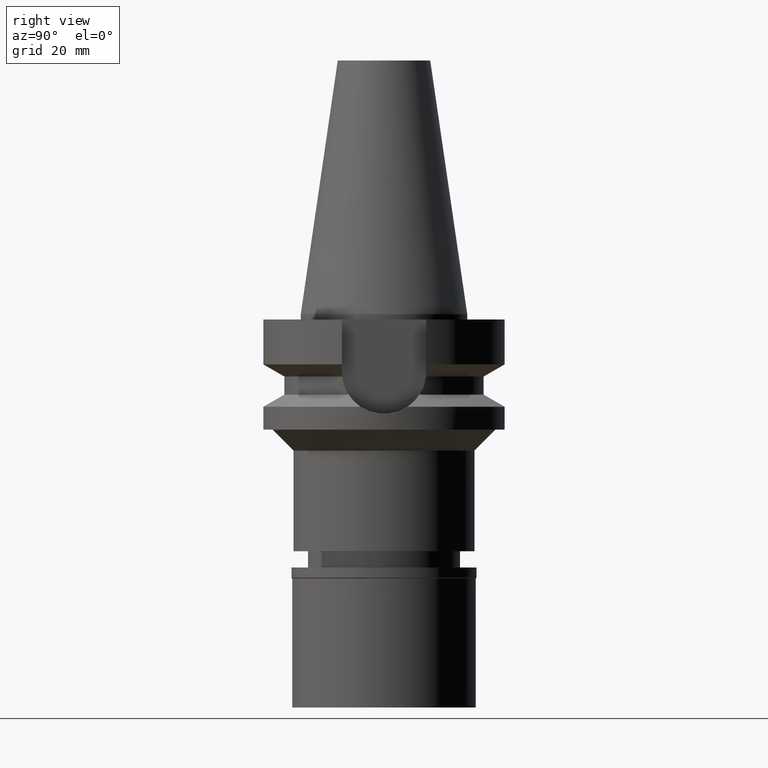
[diagram: clean part render]
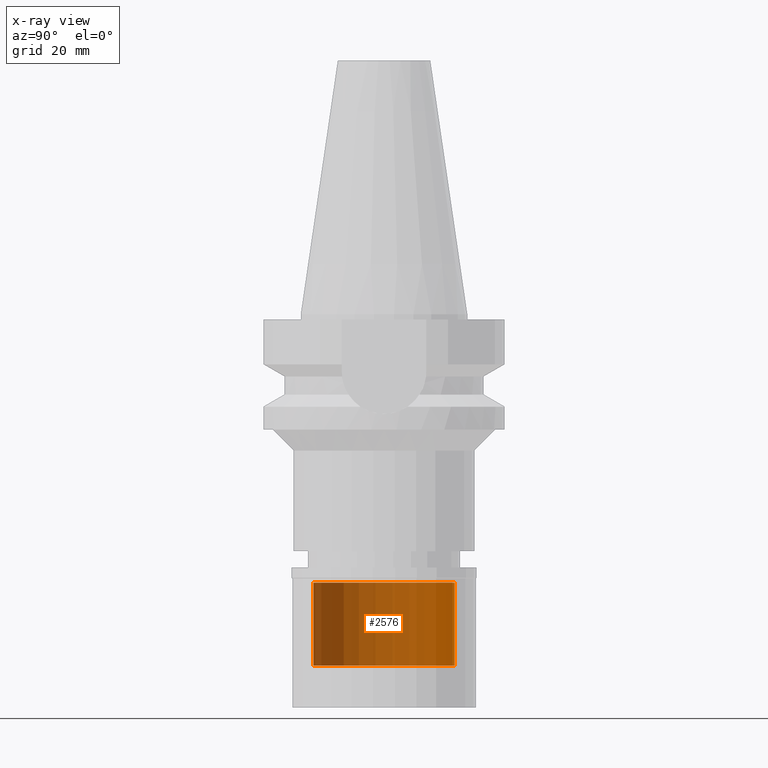
[diagram: x-ray — body ghosted, one internal face saturated and labeled with its STEP entity id]
A machine part, right view, then the same camera in x-ray: the body is ghosted and one INTERNAL B-rep face — a face not visible from any outside direction — is saturated and labeled: STEP entity #2576.
In plain terms, the highlighted cylindrical surface (partial cylindrical patch) has radius 13.5 mm, axis along (0, 0, -1).
Its self-contained STEP definition (entity closure, byte-faithful):
#160 = EDGE_CURVE ( 'NONE', #2814, #550, #971, .T. ) ;
#499 = CARTESIAN_POINT ( 'NONE',  ( 0.0000000000000000000, 13.50000000000000000, -18.70000000000000284 ) ) ;
#510 = DIRECTION ( 'NONE',  ( 0.0000000000000000000, 0.0000000000000000000, 1.000000000000000000 ) ) ;
#533 = DIRECTION ( 'NONE',  ( 0.0000000000000000000, 0.0000000000000000000, -1.000000000000000000 ) ) ;
#550 = VERTEX_POINT ( 'NONE', #1916 ) ;
#560 = VECTOR ( 'NONE', #1065, 1000.000000000000000 ) ;
#567 = CARTESIAN_POINT ( 'NONE',  ( 0.0000000000000000000, 13.50000000000000000, -18.70000000000000284 ) ) ;
#612 = CARTESIAN_POINT ( 'NONE',  ( 0.0000000000000000000, 13.50000000000000000, -2.899999999999999911 ) ) ;
#672 = CARTESIAN_POINT ( 'NONE',  ( 0.0000000000000000000, -13.50000000000000000, -18.70000000000000284 ) ) ;
#717 = AXIS2_PLACEMENT_3D ( 'NONE', #1158, #533, #1028 ) ;
#815 = AXIS2_PLACEMENT_3D ( 'NONE', #1818, #2754, #1354 ) ;
#909 = EDGE_CURVE ( 'NONE', #2547, #2738, #2204, .T. ) ;
#971 = LINE ( 'NONE', #2832, #1494 ) ;
#977 = ORIENTED_EDGE ( 'NONE', *, *, #160, .F. ) ;
#1028 = DIRECTION ( 'NONE',  ( 0.0000000000000000000, -1.000000000000000000, 0.0000000000000000000 ) ) ;
#1065 = DIRECTION ( 'NONE',  ( 0.0000000000000000000, 0.0000000000000000000, 1.000000000000000000 ) ) ;
#1158 = CARTESIAN_POINT ( 'NONE',  ( 0.0000000000000000000, 0.0000000000000000000, 0.0000000000000000000 ) ) ;
#1310 = CIRCLE ( 'NONE', #815, 13.50000000000000000 ) ;
#1354 = DIRECTION ( 'NONE',  ( 0.0000000000000000000, 1.000000000000000000, 0.0000000000000000000 ) ) ;
#1429 = ORIENTED_EDGE ( 'NONE', *, *, #1840, .T. ) ;
#1483 = CYLINDRICAL_SURFACE ( 'NONE', #717, 13.50000000000000000 ) ;
#1494 = VECTOR ( 'NONE', #510, 1000.000000000000000 ) ;
#1541 = CIRCLE ( 'NONE', #2166, 13.50000000000000000 ) ;
#1584 = DIRECTION ( 'NONE',  ( 0.0000000000000000000, -1.000000000000000000, 0.0000000000000000000 ) ) ;
#1780 = EDGE_CURVE ( 'NONE', #2738, #550, #1310, .T. ) ;
#1818 = CARTESIAN_POINT ( 'NONE',  ( 0.0000000000000000000, 0.0000000000000000000, -2.899999999999999911 ) ) ;
#1840 = EDGE_CURVE ( 'NONE', #2814, #2547, #1541, .T. ) ;
#1916 = CARTESIAN_POINT ( 'NONE',  ( 0.0000000000000000000, -13.50000000000000000, -2.899999999999999911 ) ) ;
#1975 = ORIENTED_EDGE ( 'NONE', *, *, #1780, .T. ) ;
#2068 = DIRECTION ( 'NONE',  ( 0.0000000000000000000, 0.0000000000000000000, -1.000000000000000000 ) ) ;
#2079 = FACE_OUTER_BOUND ( 'NONE', #2996, .T. ) ;
#2166 = AXIS2_PLACEMENT_3D ( 'NONE', #2530, #2068, #1584 ) ;
#2204 = LINE ( 'NONE', #567, #560 ) ;
#2530 = CARTESIAN_POINT ( 'NONE',  ( 0.0000000000000000000, 0.0000000000000000000, -18.70000000000000284 ) ) ;
#2547 = VERTEX_POINT ( 'NONE', #499 ) ;
#2576 = ADVANCED_FACE ( 'NONE', ( #2079 ), #1483, .F. ) ;
#2592 = ORIENTED_EDGE ( 'NONE', *, *, #909, .T. ) ;
#2738 = VERTEX_POINT ( 'NONE', #612 ) ;
#2754 = DIRECTION ( 'NONE',  ( 0.0000000000000000000, 0.0000000000000000000, 1.000000000000000000 ) ) ;
#2814 = VERTEX_POINT ( 'NONE', #672 ) ;
#2832 = CARTESIAN_POINT ( 'NONE',  ( 0.0000000000000000000, -13.50000000000000000, -18.70000000000000284 ) ) ;
#2996 = EDGE_LOOP ( 'NONE', ( #1975, #977, #1429, #2592 ) ) ;